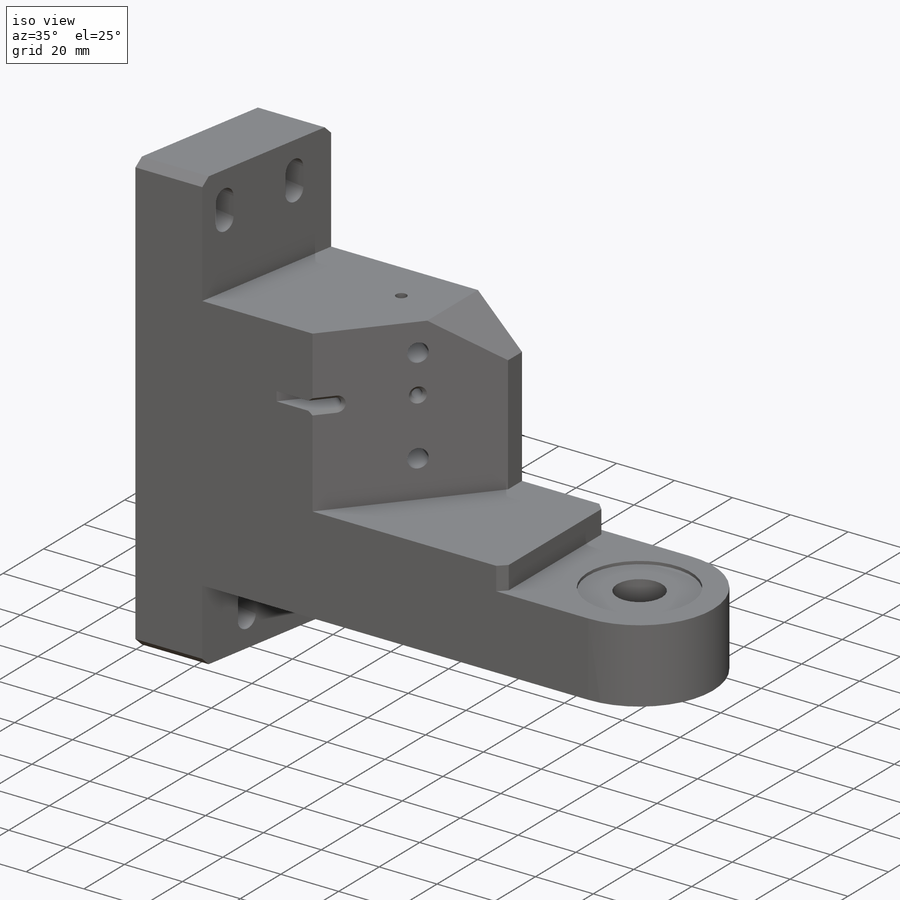
[diagram: iso view]
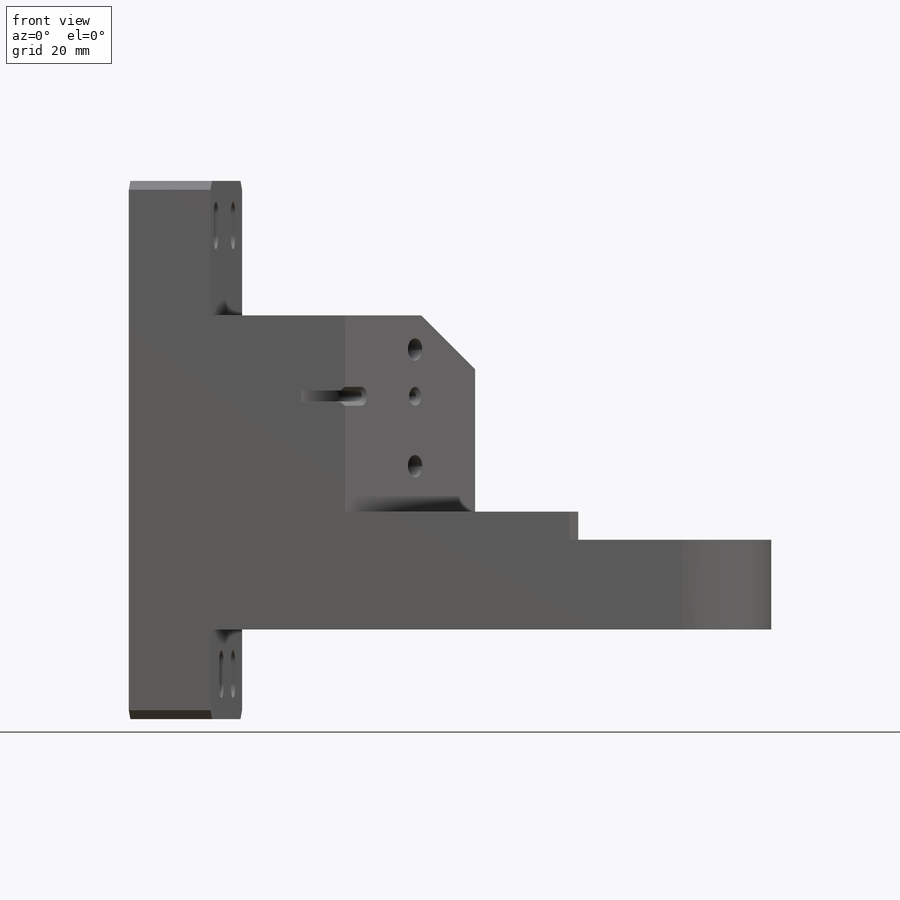
[diagram: front view]
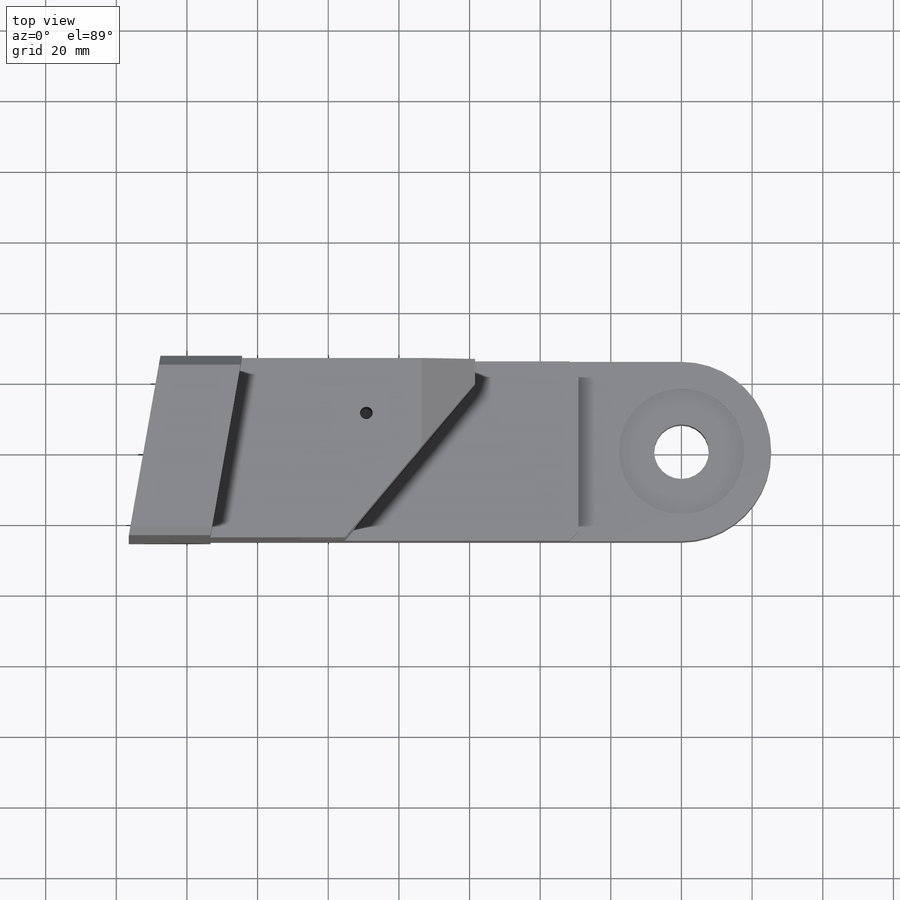
[diagram: top view]
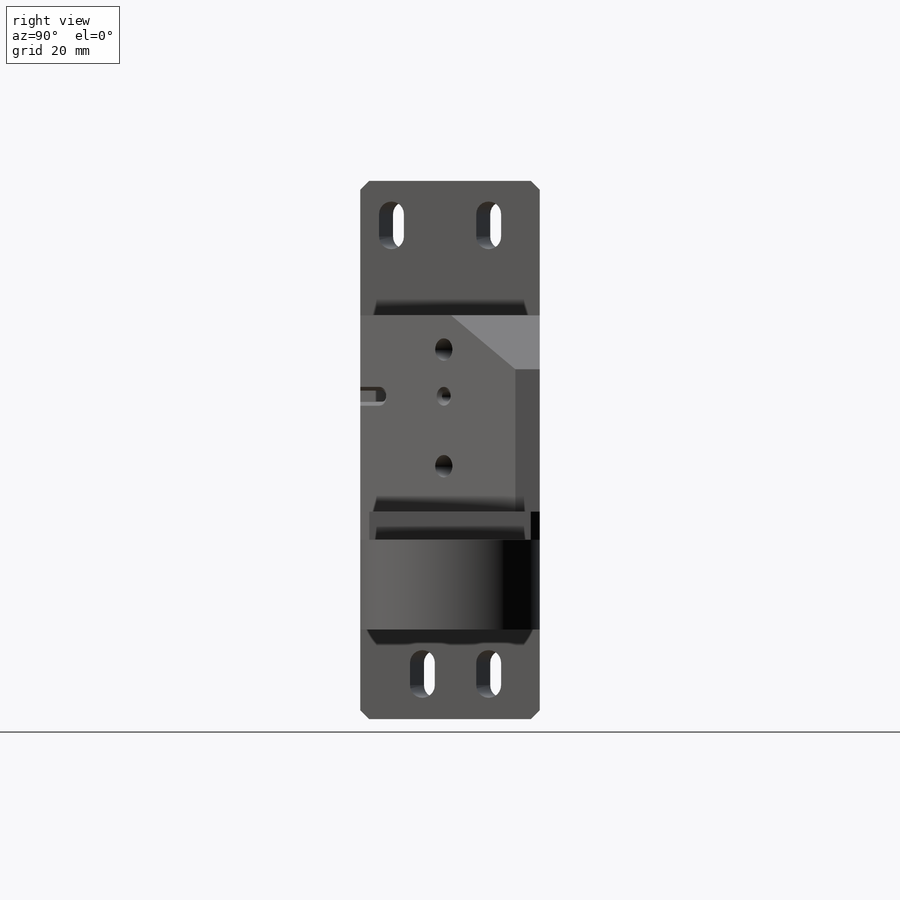
[diagram: right view]
SOLIDWORKS PART (.sldprt)
format: sldprt  version: not decoded by parser v0  size: 580,608 bytes
history: native  units: mm
features: sketch x20, cut_extrude x9, hole x5, chamfer x3, material x1, extrude x1, pattern_linear x1 + 1 further entry (+14 scaffold rows collapsed)
feature tree (55):
  scaffold x14  (default folders/planes/origin — collapsed)
  material  "6061-T6 Al"
  "Origin"  ID=-1
  sketch  "Sketch1"  dims[c1.D4=15.24mm c1.D1=~65.836543mm c1.D2=~181.407194mm c2.D1=180.34mm c2.D2=154.94mm c2.D3=50.8mm c3.D1=25.4mm c3.D2=156.464mm c4.D1=25.4mm c4.D2=181.864mm]
  extrude  "Extrude1"  Depth=152.4mm
  sketch  "Sketch2"  dims[c1.D1=50.8mm c2.D1=10.0deg]
  cut_extrude  "Extrude2"  [1 undecoded]
  sketch  "Sketch3"  dims[c1.D1=25.4mm c1.D2=~120.190753mm c2.D1=133.35mm]
  cut_extrude  "Extrude3"  Depth=38.1mm
  sketch  "Sketch4"  dims[c1.D1=~55.220885mm c2.D1=130.0deg c2.D2=58.42mm c2.D3=95.25mm]
  cut_extrude  "Extrude4"  Depth=55.5498mm
  sketch  "Sketch5"  dims[D1=29.21mm]
  cut_extrude  "Extrude5"  Depth=7.9502mm
  sketch  "Sketch6"  dims[D1=~51.583672mm]
  cut_extrude  "Extrude6"  Depth=25.4mm
  sketch  "Sketch7"  dims[D5=3.6576mm D1=7.1374mm D2=6.35mm D3=139.8016mm D4=12.9794mm]
  cut_extrude  "Extrude7"  [1 undecoded]
  pattern_linear  "LPattern1"  Count1=2 Count2=2 Spacing1=127mm Spacing2=27.94mm
  hole  "1/4-20 Tapped Hole1"  Diameter=5.1054mm Depth=16.51mm
  sketch  "Sketch9"  dims[c1.D1=33.02mm c1.D2=46.228mm c1.D3=~68.593992mm c1.D4=30.226mm c2.D3=30.861mm]
  sketch  "Sketch8"  dims[hole-wizard template sketch: 34 standard entries collapsed; hole parameters above]
  sketch  "Sketch19"  dims[D2=25.4mm D3=27.94mm D4=50.8mm D1=0.0mm]
  cut_extrude  "Extrude9"  [1 undecoded]
  chamfer  "Chamfer1"  Distance=2.54mm Angle=45deg
  chamfer  "Chamfer2"  Distance=15.24mm Angle=45deg
  sketch  "Sketch20"  dims[D1=19.05mm D2=22.0726mm]
  cut_extrude  "Extrude10"  [1 undecoded]
  hole  "SCREW THRU HOLE AND CBORE"  Diameter=15.4686mm Depth=50.8mm
  sketch  "Sketch22"
  sketch  "Sketch21"  dims[hole-wizard template sketch: 41 standard entries collapsed; hole parameters kept: c12.Thru Hole Dia.=15.4686mm c12.Thru Hole Depth=50.8mm c12.C'Bore Dia.=35.56mm c12.C'Bore Depth=1.016mm]
  hole  "1/8 (0.125) Diameter Hole1"  Diameter=3.19024mm Depth=9.525mm
  sketch  "Sketch25"  dims[D1=~13.235387mm D2=~30.899049mm]
  sketch  "Sketch24"  dims[hole-wizard template sketch: 46 standard entries collapsed; hole parameters above]
  sketch  "Sketch26"  dims[D1=23.8252mm D2=19.05mm]
  cut_extrude  "Cut-Extrude1"  Depth=9.525mm
  chamfer  "Chamfer3"  Distance=1.0795mm Angle=45deg
  hole  "9/64 (0.14063) Diameter Hole1"  Diameter=3.572002mm Depth=43.18mm
  sketch  "Sketch28"
  sketch  "Sketch29"  dims[hole-wizard template sketch: 46 standard entries collapsed; hole parameters kept: c15.Hole Dia.=~3.572002mm c15.Hole Depth=43.18mm c15.D3=~14.816244mm c15.Drill Angle=180.0deg]
  hole  "1/16 (0.0625) Diameter Hole1"  Diameter=1.5875mm Depth=16.51mm
  sketch  "Sketch31"
  sketch  "Sketch32"  dims[hole-wizard template sketch: 46 standard entries collapsed; hole parameters kept: c15.Hole Dia.=1.5875mm c15.Hole Depth=16.51mm c15.D3=~14.816244mm c15.Drill Angle=180.0deg]
decode coverage: 32 of 39 modeling features carry decoded parameters; 1 rows unclassified (native names shown)
note: ~ marks probable driven/reference dimensions
note: 4 parameter values undecoded
summary: no parameter record found for 4 features; Diameter pulled from absorbed wizard sketch
note: suppression state not decoded; provenance and decode notes live in map.json
